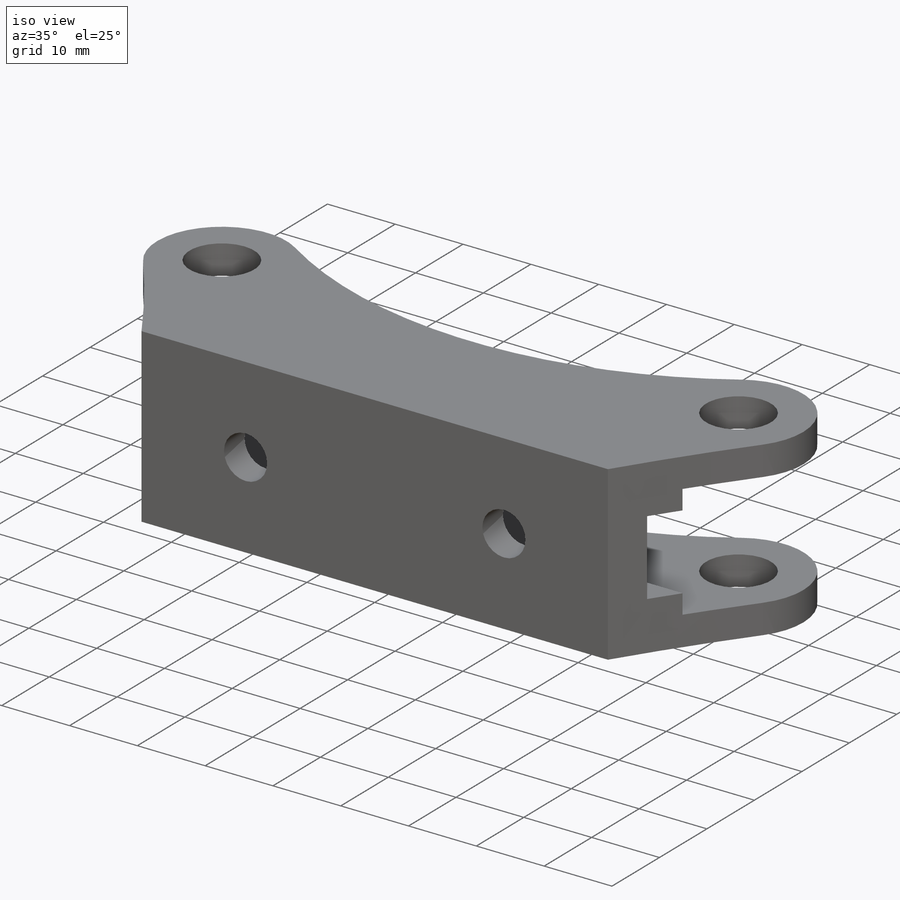
[diagram: iso view]
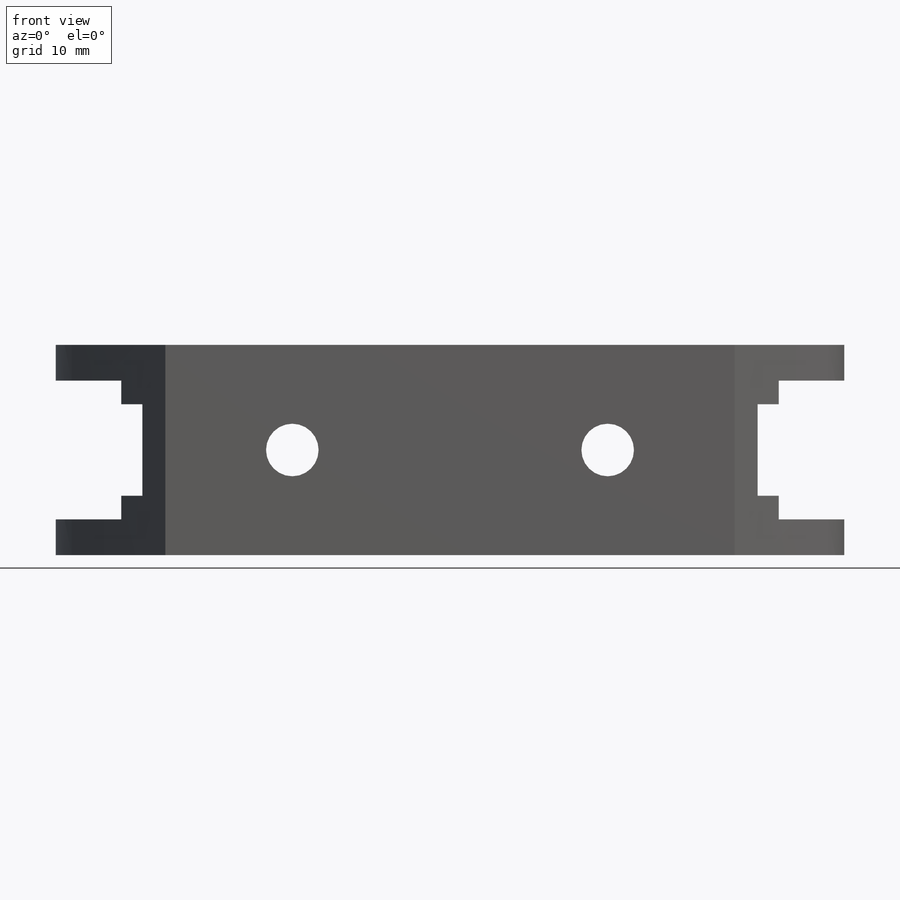
[diagram: front view]
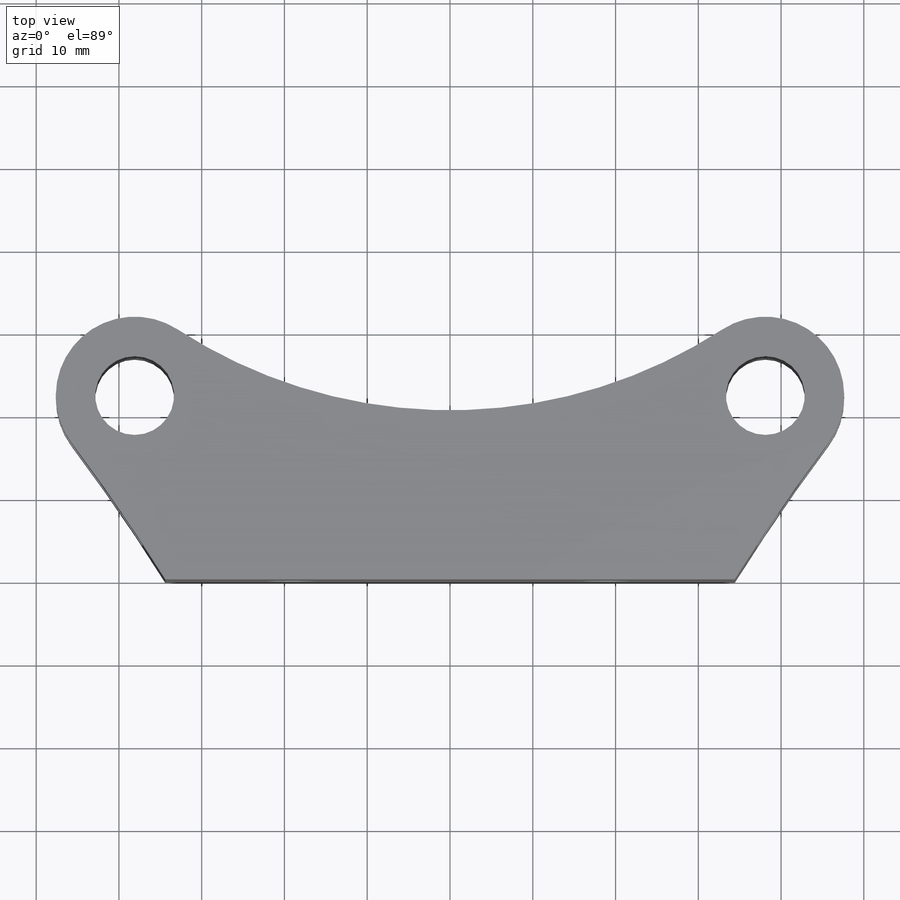
[diagram: top view]
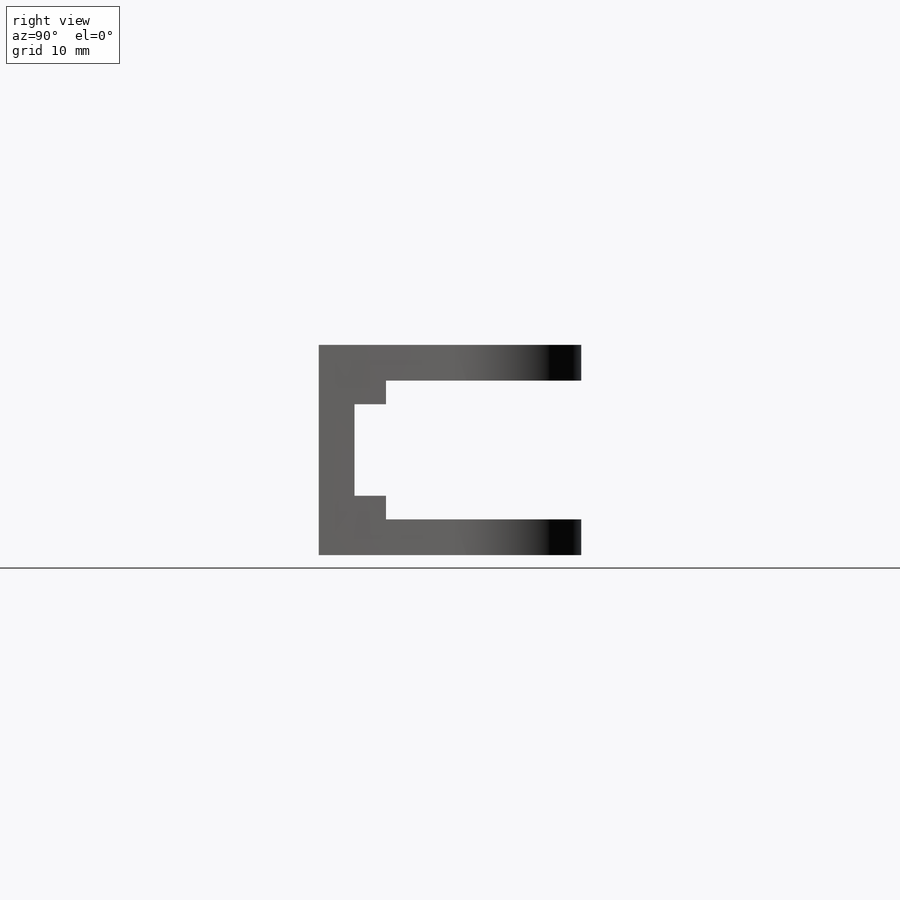
[diagram: right view]
SOLIDWORKS PART (.sldprt)
format: sldprt  version: not decoded by parser v0  size: 282,112 bytes
history: native  units: mm
features: sketch x12, cut_extrude x4, extrude x2, material x1, fillet x1 (+11 scaffold rows collapsed)
feature tree (31):
  scaffold x11  (default folders/planes/origin — collapsed)
  material  "6061-T6 (SS)"
  sketch  "Sketch1"  dims[D1=19.05mm D2=16.764mm]
  sketch  "Sketch2"  dims[c1.D1=4.7625mm c1.D2=19.05mm c1.D3=22.225mm c2.D2=31.75mm c2.D1=25.4mm]
  extrude  "Extrude1"  Depth=95.25mm
  sketch  "Sketch4"  dims[D1=9.525mm D2=38.1mm D3=22.225mm]
  cut_extrude  "SphericalHoles"  [1 undecoded]
  fillet  "Fillet1"  Radius=9.525mm
  sketch  "Sketch5"  dims[D2=6.35mm D1=38.1mm]
  cut_extrude  "Extrude2"  [1 undecoded]
  sketch  "Sketch6"  dims[D1=11.049mm D2=3.81mm]
  extrude  "Extrude3"  [1 undecoded]
  sketch  "3DSketch1"
  sketch  "Sketch10"  dims[D1=68.7832mm]
  sketch  "Sketch12"  dims[D1=1.905mm]
  cut_extrude  "Cut-Extrude1"  [1 undecoded]
  sketch  "Sketch13"  dims[D1=120.65mm]
  cut_extrude  "Cut-Extrude3"  [1 undecoded]
  sketch  "ModelUUID"
  sketch  "UUID"
  sketch  "ModelUUID"
decode coverage: 10 of 19 modeling features carry decoded parameters
note: 5 parameter values undecoded
summary: no parameter record found for 5 features
note: suppression state not decoded; provenance and decode notes live in map.json
